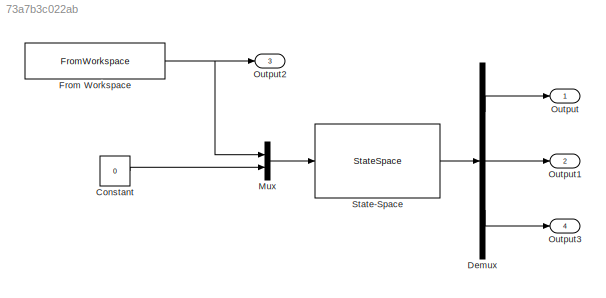
MODEL slx_73a7b3c022ab
KIND model
CONFIG AbsTol = auto
CONFIG EnableMultiTasking = off
CONFIG FixedStep = 0.001
CONFIG MaxStep = auto
CONFIG MinStep = auto
CONFIG RelTol = 1e-3
CONFIG SampleTimeConstraint = Unconstrained
CONFIG Solver = VariableStepAuto
CONFIG SolverName = VariableStepAuto
CONFIG StartTime = 0.0
CONFIG StopTime = tmax
BLOCK [Constant] Constant
  Value = 0
BLOCK [Demux] Demux
  DisplayOption = bar
  Outputs = 3
  Ports = [1, 3]
BLOCK [FromWorkspace] From Workspace
  OutputAfterFinalValue = Setting to zero
  SampleTime = 0.02
  VariableName = zr_dot
  ZeroCross = on
BLOCK [Mux] Mux
  DisplayOption = bar
  Inputs = 2
  Ports = [2, 1]
BLOCK [Outport] Output
  IconDisplay = Port number
  SignalName = suspension_travel
BLOCK [Outport] Output1
  IconDisplay = Port number
  Port = 2
  SignalName = body_acc
BLOCK [Outport] Output2
  IconDisplay = Port number
  Port = 3
  SignalName = zr_dot
BLOCK [Outport] Output3
  IconDisplay = Port number
  Port = 4
  SignalName = tire_displacement
BLOCK [StateSpace] State-Space
  A = A
  B = B
  C = C
  ContinuousStateAttributes = ""
  D = D
  InitialCondition = [0.001 -0.03 -0.016 -0.08]
  Ports = [1, 1]
LINE Constant:1 -> Mux:2
LINE Demux:1 -> Output:1
LINE Demux:2 -> Output1:1
LINE Demux:3 -> Output3:1
NET From Workspace:1 -> Mux:1, Output2:1
LINE Mux:1 -> State-Space:1
LINE State-Space:1 -> Demux:1
note: NET lines group one-source signal fan-out (src -> all destinations, sorted); 1:1 wires keep LINE
